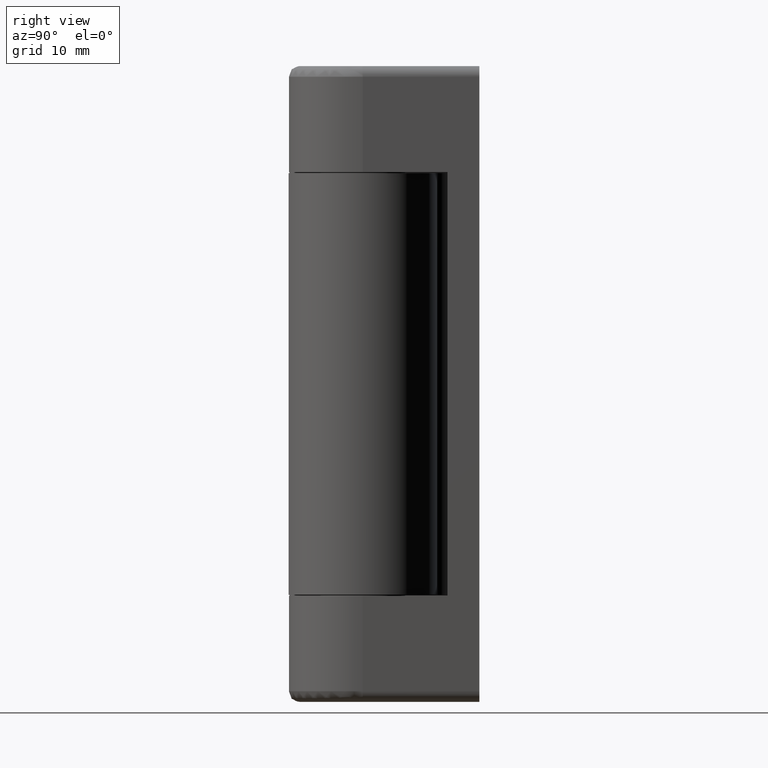
[diagram: clean part render]
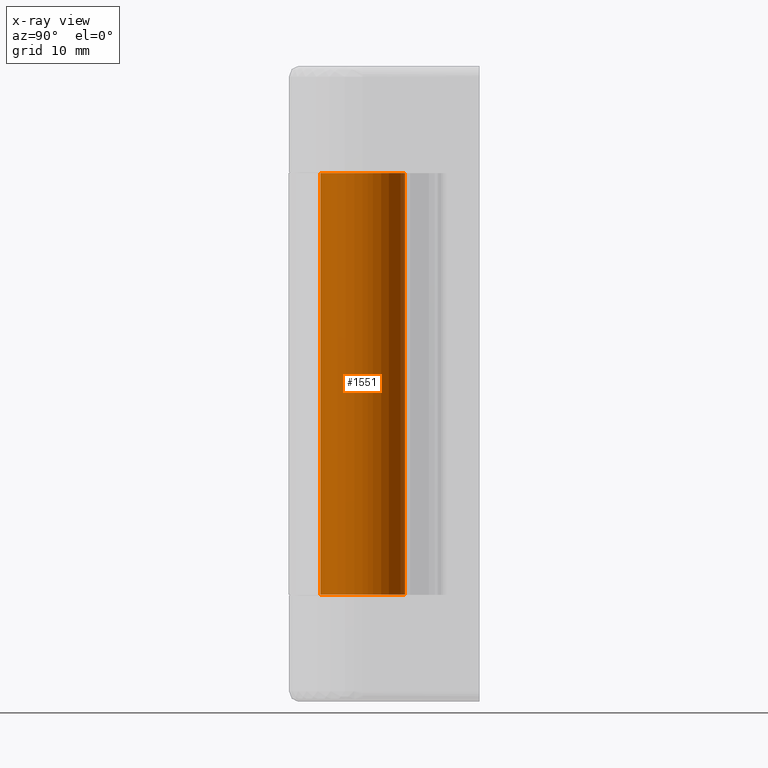
[diagram: x-ray — body ghosted, one internal face saturated and labeled with its STEP entity id]
A machine part, right view, then the same camera in x-ray: the body is ghosted and one INTERNAL B-rep face — a face not visible from any outside direction — is saturated and labeled: STEP entity #1551.
In plain terms, the highlighted face is a freeform B-spline surface patch.
Its self-contained STEP definition (entity closure, byte-faithful):
#1445=CARTESIAN_POINT('',(-0.531083524701839,3.965031410162982,50.895000000000032));
#1446=CARTESIAN_POINT('',(-0.501527126166647,3.968544636156984,50.895000000000032));
#1447=CARTESIAN_POINT('',(-0.358458914551911,3.985550461794422,50.895000000000017));
#1448=CARTESIAN_POINT('',(-0.244194158139428,3.992539193687467,50.895000000000010));
#1449=CARTESIAN_POINT('',(3.748345035548039,4.236733351826894,50.895000000000010));
#1450=CARTESIAN_POINT('',(3.992539193687467,0.244194158139428,50.895000000000010));
#1451=CARTESIAN_POINT('',(4.236733351826894,-3.748345035548039,50.895000000000010));
#1452=CARTESIAN_POINT('',(0.215480100834626,-3.994295420667381,50.895000000000032));
#1453=CARTESIAN_POINT('',(0.186936613435808,-3.996041215144922,50.894999999999989));
#1454=CARTESIAN_POINT('',(-0.531083524701839,3.965031410162982,9.080125000000002));
#1455=CARTESIAN_POINT('',(-0.501527126166647,3.968544636156984,9.080125000000002));
#1456=CARTESIAN_POINT('',(-0.358458914551911,3.985550461794422,9.080125000000002));
#1457=CARTESIAN_POINT('',(-0.244194158139428,3.992539193687467,9.080125000000002));
#1458=CARTESIAN_POINT('',(3.748345035548039,4.236733351826894,9.080125000000002));
#1459=CARTESIAN_POINT('',(3.992539193687467,0.244194158139428,9.080125000000002));
#1460=CARTESIAN_POINT('',(4.236733351826894,-3.748345035548039,9.080125000000002));
#1461=CARTESIAN_POINT('',(0.215480100834626,-3.994295420667381,9.080125000000006));
#1462=CARTESIAN_POINT('',(0.186936613435808,-3.996041215144922,9.080124999999999));
#1470=(BOUNDED_SURFACE()B_SPLINE_SURFACE(2,1,((#1445,#1454),(#1446,#1455),(#1447,#1456),(#1448,#1457),(#1449,#1458),(#1450,#1459),(#1451,#1460),(#1452,#1461),(#1453,#1462)),.UNSPECIFIED.,.F.,.F.,.U.)B_SPLINE_SURFACE_WITH_KNOTS((3,1,2,2,1,3),(2,2),(0.0,0.067599695197404,0.332696375116185,6.960113373085703,13.587530371055220,13.655138724864790),(0.0,41.814875000000029),.UNSPECIFIED.)GEOMETRIC_REPRESENTATION_ITEM()RATIONAL_B_SPLINE_SURFACE(((0.972008777463900,0.972008777463900),(0.974757289129514,0.974757289129514),(0.988284271247462,0.988284271247462),(1.0,1.0),(0.707106781186548,0.707106781186548),(1.0,1.0),(0.707106781186548,0.707106781186548),(1.002987895340225,1.002987895340225),(1.005975790680451,1.005975790680451)))REPRESENTATION_ITEM('')SURFACE());
#1471=CARTESIAN_POINT('',(-0.472136938657958,3.972038105450989,10.100000000000000));
#1472=VERTEX_POINT('',#1471);
#1473=CARTESIAN_POINT('',(4.0,0.0,10.100000000000000));
#1474=VERTEX_POINT('',#1473);
#1475=CARTESIAN_POINT('',(-0.472136938657958,3.972038105450989,10.099999999999998));
#1476=CARTESIAN_POINT('',(-0.236896478638892,4.000000000000001,10.100000000000000));
#1477=CARTESIAN_POINT('',(0.0,4.0,10.100000000000000));
#1478=CARTESIAN_POINT('',(4.000000000000000,4.000000000000000,10.100000000000000));
#1479=CARTESIAN_POINT('',(4.0,0.0,10.100000000000000));
#1487=(BOUNDED_CURVE()B_SPLINE_CURVE(2,(#1475,#1476,#1477,#1478,#1479),.UNSPECIFIED.,.F.,.U.)B_SPLINE_CURVE_WITH_KNOTS((3,2,3),(0.229562473513013,0.250000000000000,0.500000000000000),.UNSPECIFIED.)CURVE()GEOMETRIC_REPRESENTATION_ITEM()RATIONAL_B_SPLINE_CURVE((0.956026754182728,0.976055948330564,1.0,0.707106781186548,1.0))REPRESENTATION_ITEM(''));
#1488=EDGE_CURVE('',#1472,#1474,#1487,.T.);
#1489=ORIENTED_EDGE('',*,*,#1488,.T.);
#1490=CARTESIAN_POINT('',(0.244186781305832,-3.992539644860258,10.100000000000030));
#1491=VERTEX_POINT('',#1490);
#1492=CARTESIAN_POINT('',(4.0,0.0,10.100000000000000));
#1493=CARTESIAN_POINT('',(4.0,-3.762831233019650,10.100000000000000));
#1494=CARTESIAN_POINT('',(0.244186781305832,-3.992539644860258,10.100000000000025));
#1502=(BOUNDED_CURVE()B_SPLINE_CURVE(2,(#1492,#1493,#1494),.UNSPECIFIED.,.F.,.U.)B_SPLINE_CURVE_WITH_KNOTS((3,3),(0.500000000000000,0.739333281048922),.UNSPECIFIED.)CURVE()GEOMETRIC_REPRESENTATION_ITEM()RATIONAL_B_SPLINE_CURVE((1.0,0.719603619777586,0.976072724938143))REPRESENTATION_ITEM(''));
#1503=EDGE_CURVE('',#1474,#1491,#1502,.T.);
#1504=ORIENTED_EDGE('',*,*,#1503,.T.);
#1505=CARTESIAN_POINT('',(0.244186872113998,-3.992539639306528,49.899999999999999));
#1506=VERTEX_POINT('',#1505);
#1507=CARTESIAN_POINT('',(0.244186872113998,-3.992539639306528,49.899999999999999));
#1508=CARTESIAN_POINT('',(0.244186781305832,-3.992539644860258,10.100000000000030));
#1509=QUASI_UNIFORM_CURVE('',1,(#1507,#1508),.UNSPECIFIED.,.F.,.U.);
#1510=EDGE_CURVE('',#1506,#1491,#1509,.T.);
#1511=ORIENTED_EDGE('',*,*,#1510,.F.);
#1512=CARTESIAN_POINT('',(4.0,0.0,49.899999999999999));
#1513=VERTEX_POINT('',#1512);
#1514=CARTESIAN_POINT('',(4.0,0.0,49.899999999999999));
#1515=CARTESIAN_POINT('',(4.0,-3.762831147276171,49.899999999999991));
#1516=CARTESIAN_POINT('',(0.244186872113998,-3.992539639306527,49.900000000000006));
#1524=(BOUNDED_CURVE()B_SPLINE_CURVE(2,(#1514,#1515,#1516),.UNSPECIFIED.,.F.,.U.)B_SPLINE_CURVE_WITH_KNOTS((3,3),(0.500000000000000,0.739333277124436),.UNSPECIFIED.)CURVE()GEOMETRIC_REPRESENTATION_ITEM()RATIONAL_B_SPLINE_CURVE((1.0,0.719603624375408,0.976072716527199))REPRESENTATION_ITEM(''));
#1525=EDGE_CURVE('',#1513,#1506,#1524,.T.);
#1526=ORIENTED_EDGE('',*,*,#1525,.F.);
#1527=CARTESIAN_POINT('',(-0.472136938657958,3.972038105450990,49.899999999999991));
#1528=VERTEX_POINT('',#1527);
#1529=CARTESIAN_POINT('',(-0.472136938657958,3.972038105450989,49.899999999999991));
#1530=CARTESIAN_POINT('',(-0.236896478638891,4.000000000000001,49.899999999999991));
#1531=CARTESIAN_POINT('',(0.0,4.0,49.899999999999999));
#1532=CARTESIAN_POINT('',(4.000000000000000,4.000000000000000,49.899999999999991));
#1533=CARTESIAN_POINT('',(4.0,0.0,49.899999999999999));
#1541=(BOUNDED_CURVE()B_SPLINE_CURVE(2,(#1529,#1530,#1531,#1532,#1533),.UNSPECIFIED.,.F.,.U.)B_SPLINE_CURVE_WITH_KNOTS((3,2,3),(0.229562473513013,0.250000000000000,0.500000000000000),.UNSPECIFIED.)CURVE()GEOMETRIC_REPRESENTATION_ITEM()RATIONAL_B_SPLINE_CURVE((0.956026754182728,0.976055948330564,1.0,0.707106781186548,1.0))REPRESENTATION_ITEM(''));
#1542=EDGE_CURVE('',#1528,#1513,#1541,.T.);
#1543=ORIENTED_EDGE('',*,*,#1542,.F.);
#1544=CARTESIAN_POINT('',(-0.472136938657958,3.972038105450990,49.899999999999991));
#1545=CARTESIAN_POINT('',(-0.472136938657958,3.972038105450989,10.100000000000000));
#1546=QUASI_UNIFORM_CURVE('',1,(#1544,#1545),.UNSPECIFIED.,.F.,.U.);
#1547=EDGE_CURVE('',#1528,#1472,#1546,.T.);
#1548=ORIENTED_EDGE('',*,*,#1547,.T.);
#1549=EDGE_LOOP('',(#1489,#1504,#1511,#1526,#1543,#1548));
#1550=FACE_OUTER_BOUND('',#1549,.T.);
#1551=ADVANCED_FACE('',(#1550),#1470,.F.);